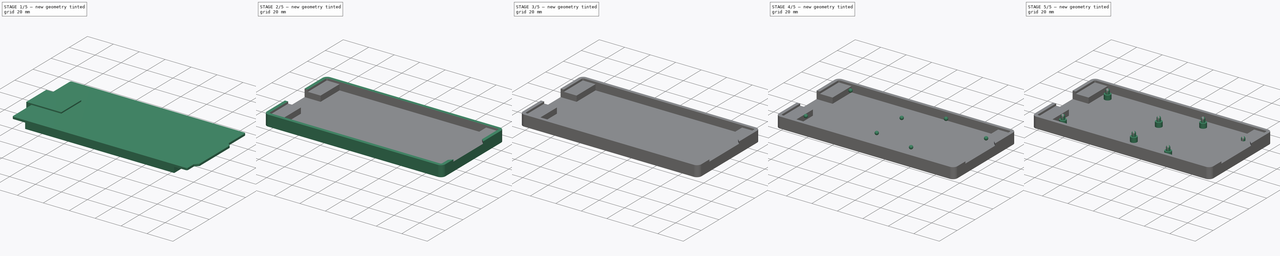
[diagram: build sequence overview — one tinted view per stage of 5, left to right]
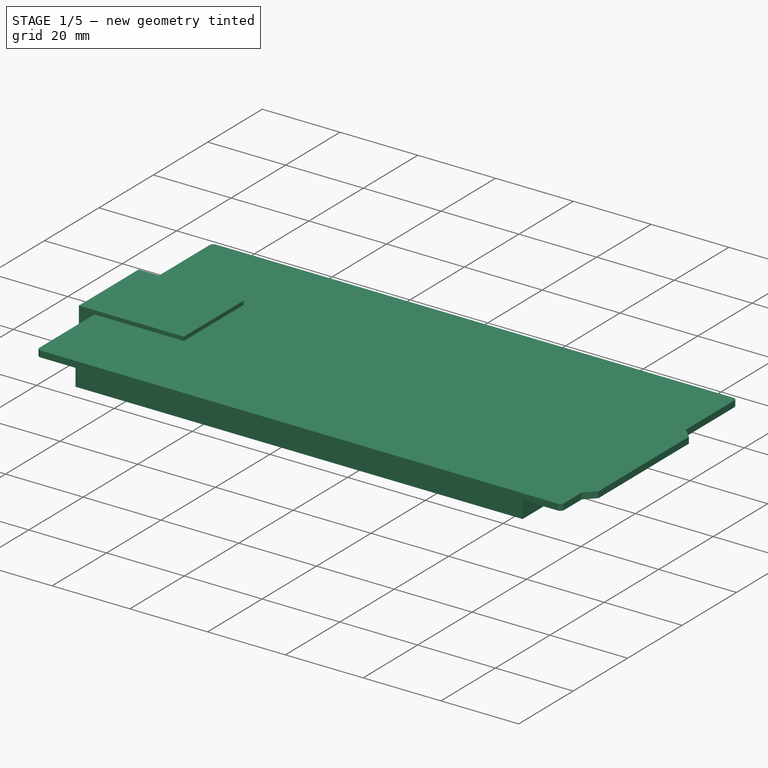
[diagram: stage 1 of 5 — iso view after this stage's code; geometry added in this stage tinted green]
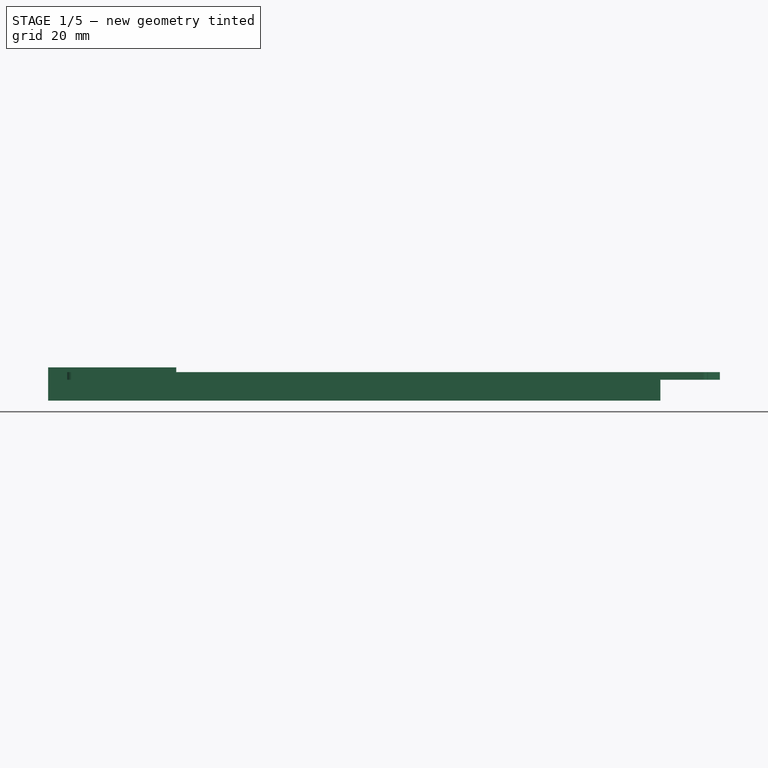
[diagram: stage 1 of 5 — front view after this stage's code; geometry added in this stage tinted green]
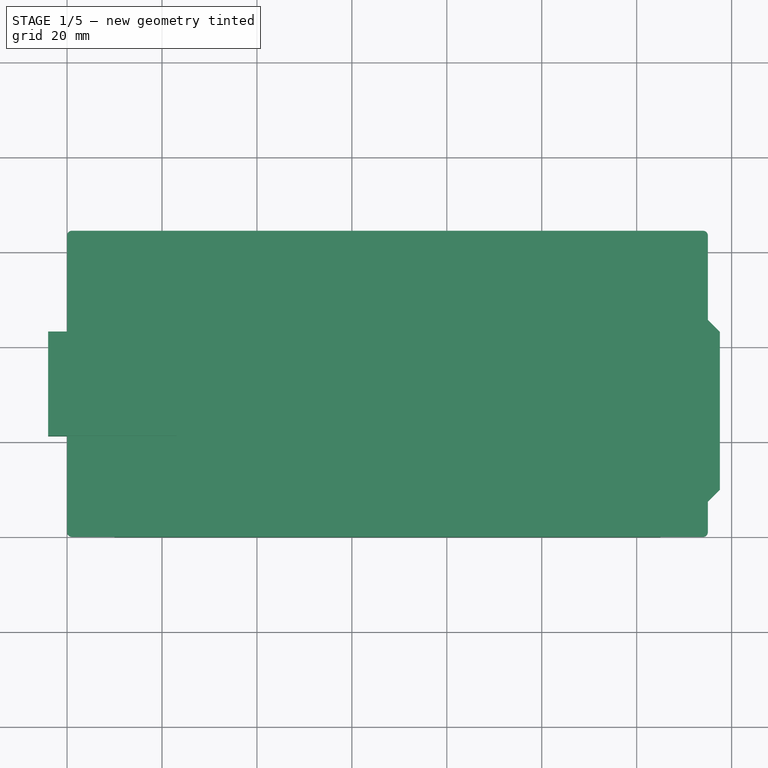
[diagram: stage 1 of 5 — top view after this stage's code; geometry added in this stage tinted green]
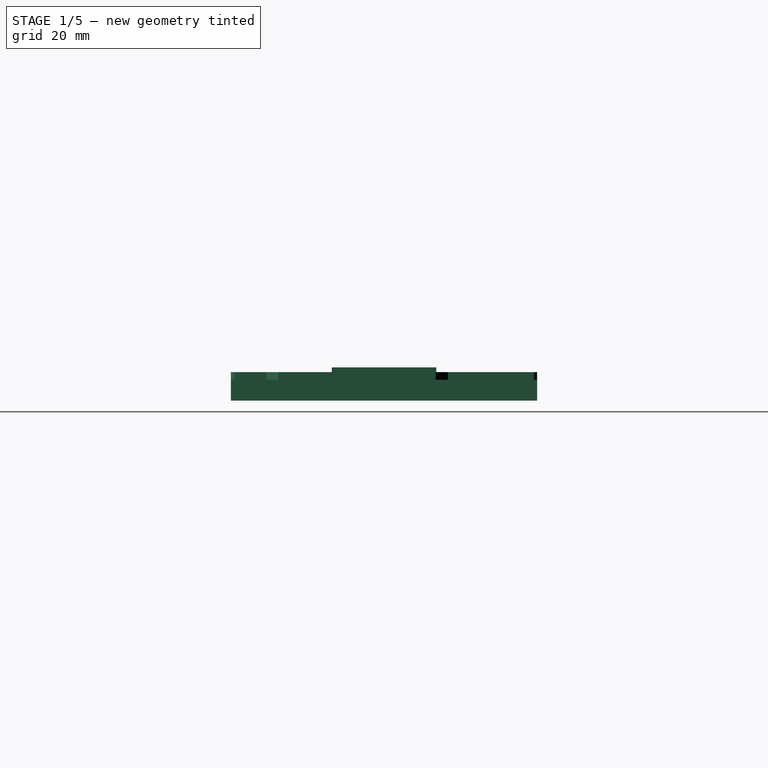
[diagram: stage 1 of 5 — right view after this stage's code; geometry added in this stage tinted green]
FCSTD DOCUMENT  (FreeCAD 0.16R)
Label: case
License: All rights reserved
LicenseURL: http://en.wikipedia.org/wiki/All_rights_reserved
objects: Part::Sphere×7, Sketcher::SketchObject×5, Part::Extrusion×5, Part::MultiFuse×4, Part::Box×1, Part::Cut×1
note: 23 computed .brp shape members not serialized (recipe doc carries the construction recipe); baked Part::Feature solids carry a one-line shape summary decoded from their .brp

FEATURE [Sketcher::SketchObject] Sketch  label="inner"
  sketch-geometry (12):
    g0: LineSegment StartX=0 StartY=1.02 StartZ=0 EndX=0 EndY=63.48 EndZ=0
    g1: LineSegment StartX=1.02 StartY=64.5 StartZ=0 EndX=133.97 EndY=64.5 EndZ=0
    g2: LineSegment StartX=134.99 StartY=63.48 StartZ=0 EndX=134.99 EndY=45.7 EndZ=0
    g3: LineSegment StartX=134.99 StartY=45.7 StartZ=0 EndX=137.53 EndY=43.16 EndZ=0
    g4: LineSegment StartX=137.53 StartY=43.16 StartZ=0 EndX=137.53 EndY=9.96 EndZ=0
    g5: LineSegment StartX=137.53 StartY=9.96 StartZ=0 EndX=134.99 EndY=7.42 EndZ=0
    g6: LineSegment StartX=134.99 StartY=7.42 StartZ=0 EndX=134.99 EndY=1.02 EndZ=0
    g7: LineSegment StartX=133.97 StartY=0 StartZ=0 EndX=1.02 EndY=0 EndZ=0
    g8: ArcOfCircle CenterX=1.02 CenterY=63.48 CenterZ=0 NormalX=0 NormalY=0 NormalZ=1 Radius=1.02 StartAngle=1.5708 EndAngle=3.14159
    g9: ArcOfCircle CenterX=133.97 CenterY=63.48 CenterZ=0 NormalX=0 NormalY=0 NormalZ=1 Radius=1.02 StartAngle=0 EndAngle=1.5708
    g10: ArcOfCircle CenterX=1.02 CenterY=1.02 CenterZ=0 NormalX=0 NormalY=0 NormalZ=1 Radius=1.02 StartAngle=3.14159 EndAngle=4.71239
    g11: ArcOfCircle CenterX=133.97 CenterY=1.02 CenterZ=0 NormalX=0 NormalY=0 NormalZ=1 Radius=1.02 StartAngle=4.71239 EndAngle=6.28319
  constraints (32):
    c: Coincident(g2,g3)
    c: Coincident(g3,g4)
    c: Coincident(g4,g5)
    c: Coincident(g5,g6)
    c: Tangent(g1,g8) = 1.5708
    c: Tangent(g0,g8) = 1.5708
    c: Tangent(g1,g9) = 1.5708
    c: Tangent(g2,g9) = 1.5708
    c: Tangent(g0,g10) = 1.5708
    c: Tangent(g7,g10) = 1.5708
    c: Tangent(g7,g11) = 1.5708
    c: Tangent(g6,g11) = 1.5708
    c: Radius(g8) = 1.02
    c: Radius(g10) = 1.02
    c: Radius(g11) = 1.02
    c: Radius(g9) = 1.02
    c: Vertical(g2)
    c: Vertical(g6)
    c: Vertical(g4)
    c: Horizontal(g1)
    c: Horizontal(g7)
    c: Vertical(g0)
    c: DistanceX(g0,g6) = 134.99
    c: DistanceX(g5,g4) = 2.54
    c: DistanceX(g0,g2) = 134.99
    c: Angle(g3,g2) = 2.35619
    c: Angle(g6,g5) = 2.35619
    c: DistanceY(g4,g4) = 33.2
    c: DistanceY(g7,g1) = 64.5
    c: DistanceX(g-1,g7) = 1.02
    c: DistanceY(g-1,g0) = 1.02
    c: DistanceY(g7,g5) = 7.42
FEATURE [Sketcher::SketchObject] Sketch001  label="outer"
  sketch-geometry (8):
    g0: LineSegment StartX=1.02 StartY=66.94 StartZ=0 EndX=133.97 EndY=66.94 EndZ=0
    g1: LineSegment StartX=137.53 StartY=63.38 StartZ=0 EndX=137.53 EndY=1.02 EndZ=0
    g2: LineSegment StartX=133.97 StartY=-2.54 StartZ=0 EndX=1.02 EndY=-2.54 EndZ=0
    g3: LineSegment StartX=-2.54 StartY=1.02 StartZ=0 EndX=-2.54 EndY=63.38 EndZ=0
    g4: ArcOfCircle CenterX=1.02 CenterY=63.38 CenterZ=0 NormalX=0 NormalY=0 NormalZ=1 Radius=3.56 StartAngle=1.5708 EndAngle=3.14159
    g5: ArcOfCircle CenterX=133.97 CenterY=63.38 CenterZ=0 NormalX=0 NormalY=0 NormalZ=1 Radius=3.56 StartAngle=0 EndAngle=1.5708
    g6: ArcOfCircle CenterX=133.97 CenterY=1.02 CenterZ=0 NormalX=0 NormalY=0 NormalZ=1 Radius=3.56 StartAngle=4.71239 EndAngle=6.28319
    g7: ArcOfCircle CenterX=1.02 CenterY=1.02 CenterZ=0 NormalX=0 NormalY=0 NormalZ=1 Radius=3.56 StartAngle=3.14159 EndAngle=4.71239
  constraints (20):
    c: Horizontal(g0)
    c: Horizontal(g2)
    c: Vertical(g1)
    c: Vertical(g3)
    c: Tangent(g0,g4) = 1.5708
    c: Tangent(g3,g4) = 1.5708
    c: Tangent(g0,g5) = 1.5708
    c: Tangent(g1,g5) = 1.5708
    c: Tangent(g1,g6) = 1.5708
    c: Tangent(g2,g6) = 1.5708
    c: Tangent(g3,g7) = 1.5708
    c: Tangent(g2,g7) = 1.5708
    c: Radius(g7) = 3.56
    c: Radius(g6) = 3.56
    c: Radius(g5) = 3.56
    c: Radius(g4) = 3.56
    c: DistanceX(g3,g1) = 140.07
    c: DistanceY(g2,g0) = 69.48
    c: DistanceY(g2,g-1) = 2.54
    c: DistanceX(g3,g-1) = 2.54
FEATURE [Sketcher::SketchObject] Sketch002  label="hole_pivot"
  sketch-geometry (7):
    g0: Circle CenterX=15.24 CenterY=55.88 CenterZ=0 NormalX=0 NormalY=0 NormalZ=1 Radius=1.4
    g1: Circle CenterX=13.97 CenterY=7.62 CenterZ=0 NormalX=0 NormalY=0 NormalZ=1 Radius=1.4
    g2: Circle CenterX=66.04 CenterY=40.64 CenterZ=0 NormalX=0 NormalY=0 NormalZ=1 Radius=1.4
    g3: Circle CenterX=66.04 CenterY=12.7 CenterZ=0 NormalX=0 NormalY=0 NormalZ=1 Radius=1.4
    g4: Circle CenterX=90.17 CenterY=55.88 CenterZ=0 NormalX=0 NormalY=0 NormalZ=1 Radius=1.4
    g5: Circle CenterX=96.52 CenterY=7.62 CenterZ=0 NormalX=0 NormalY=0 NormalZ=1 Radius=1.4
    g6: Circle CenterX=128.27 CenterY=46.35 CenterZ=0 NormalX=0 NormalY=0 NormalZ=1 Radius=1.4
  constraints (21):
    c: Radius(g0) = 1.4
    c: Radius(g1) = 1.4
    c: Radius(g2) = 1.4
    c: Radius(g3) = 1.4
    c: Radius(g4) = 1.4
    c: Radius(g5) = 1.4
    c: Radius(g6) = 1.4
    c: DistanceX(g-1,g1) = 13.97
    c: DistanceY(g-1,g1) = 7.62
    c: DistanceX(g-1,g0) = 15.24
    c: DistanceY(g-1,g0) = 55.88
    c: DistanceX(g-1,g3) = 66.04
    c: DistanceY(g-1,g3) = 12.7
    c: DistanceX(g-1,g2) = 66.04
    c: DistanceY(g-1,g2) = 40.64
    c: DistanceX(g-1,g4) = 90.17
    c: DistanceY(g-1,g4) = 55.88
    c: DistanceX(g-1,g6) = 128.27
    c: DistanceY(g-1,g6) = 46.35
    c: DistanceY(g-1,g5) = 7.62
    c: DistanceX(g-1,g5) = 96.52
FEATURE [Sketcher::SketchObject] Sketch003  label="hole_base"
  sketch-geometry (7):
    g0: Circle CenterX=15.24 CenterY=55.88 CenterZ=0 NormalX=0 NormalY=0 NormalZ=1 Radius=2.5
    g1: Circle CenterX=13.97 CenterY=7.62 CenterZ=0 NormalX=0 NormalY=0 NormalZ=1 Radius=2.5
    g2: Circle CenterX=66.04 CenterY=40.64 CenterZ=0 NormalX=0 NormalY=0 NormalZ=1 Radius=2.5
    g3: Circle CenterX=66.04 CenterY=12.7 CenterZ=0 NormalX=0 NormalY=0 NormalZ=1 Radius=2.5
    g4: Circle CenterX=90.17 CenterY=55.88 CenterZ=0 NormalX=0 NormalY=0 NormalZ=1 Radius=2.5
    g5: Circle CenterX=96.52 CenterY=7.62 CenterZ=0 NormalX=0 NormalY=0 NormalZ=1 Radius=2.5
    g6: Circle CenterX=128.27 CenterY=46.35 CenterZ=0 NormalX=0 NormalY=0 NormalZ=1 Radius=2.5
  constraints (21):
    c: Radius(g0) = 2.5
    c: Radius(g1) = 2.5
    c: Radius(g2) = 2.5
    c: Radius(g3) = 2.5
    c: Radius(g4) = 2.5
    c: Radius(g5) = 2.5
    c: Radius(g6) = 2.5
    c: DistanceX(g-1,g1) = 13.97
    c: DistanceY(g-1,g1) = 7.62
    c: DistanceX(g-1,g0) = 15.24
    c: DistanceY(g-1,g0) = 55.88
    c: DistanceX(g-1,g3) = 66.04
    c: DistanceY(g-1,g3) = 12.7
    c: DistanceX(g-1,g2) = 66.04
    c: DistanceY(g-1,g2) = 40.64
    c: DistanceX(g-1,g4) = 90.17
    c: DistanceY(g-1,g4) = 55.88
    c: DistanceX(g-1,g6) = 128.27
    c: DistanceY(g-1,g6) = 46.35
    c: DistanceY(g-1,g5) = 7.62
    c: DistanceX(g-1,g5) = 96.52
FEATURE [Sketcher::SketchObject] Sketch004  label="base_gap"
  sketch-geometry (4):
    g0: LineSegment StartX=10 StartY=64.5 StartZ=0 EndX=124.99 EndY=64.5 EndZ=0
    g1: LineSegment StartX=124.99 StartY=64.5 StartZ=0 EndX=124.99 EndY=0 EndZ=0
    g2: LineSegment StartX=124.99 StartY=0 StartZ=0 EndX=10 EndY=0 EndZ=0
    g3: LineSegment StartX=10 StartY=0 StartZ=0 EndX=10 EndY=64.5 EndZ=0
  constraints (12):
    c: Coincident(g0,g1)
    c: Coincident(g1,g2)
    c: Coincident(g2,g3)
    c: Coincident(g3,g0)
    c: Horizontal(g0)
    c: Horizontal(g2)
    c: Vertical(g1)
    c: Vertical(g3)
    c: DistanceY(g2,g0) = 64.5
    c: DistanceX(g0,g0) = 114.99
    c: DistanceX(g-1,g2) = 10
    c: DistanceY(g-1,g2) = 0
FEATURE [Part::Box] Box  label="battery_gap"
  Height = 7
  Length = 27
  Placement = pos=(-4,21.25,2.54) rot=(0,0,1;0rad)
  Width = 22
FEATURE [Part::Extrusion] Extrude006  label="gap_solid"
  Base = -> Sketch004
  Dir = (0,0,6)
  Placement = pos=(0,0,2.54) rot=(0,0,1;0rad)
  Solid = true
FEATURE [Part::Extrusion] Extrude007  label="circuit_solid"
  Base = -> Sketch
  Dir = (0,0,1.6)
  Placement = pos=(0,0,6.94) rot=(0,0,1;0rad)
  Solid = true
FEATURE [Part::MultiFuse] Fusion  label="gaps_solid"
  Shapes = -> [Box,Extrude007,Extrude006]
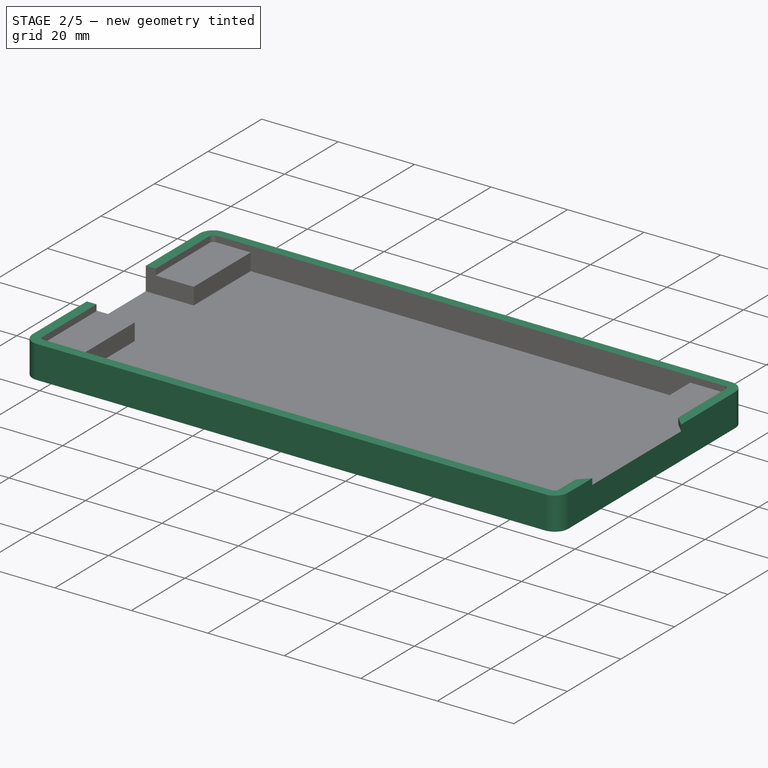
[diagram: stage 2 of 5 — iso view after this stage's code; geometry added in this stage tinted green]
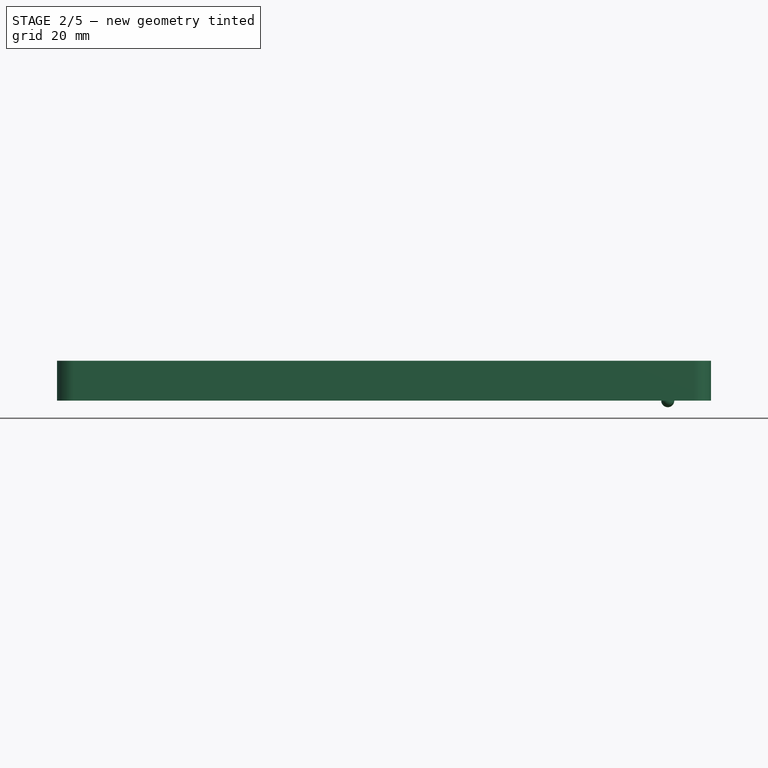
[diagram: stage 2 of 5 — front view after this stage's code; geometry added in this stage tinted green]
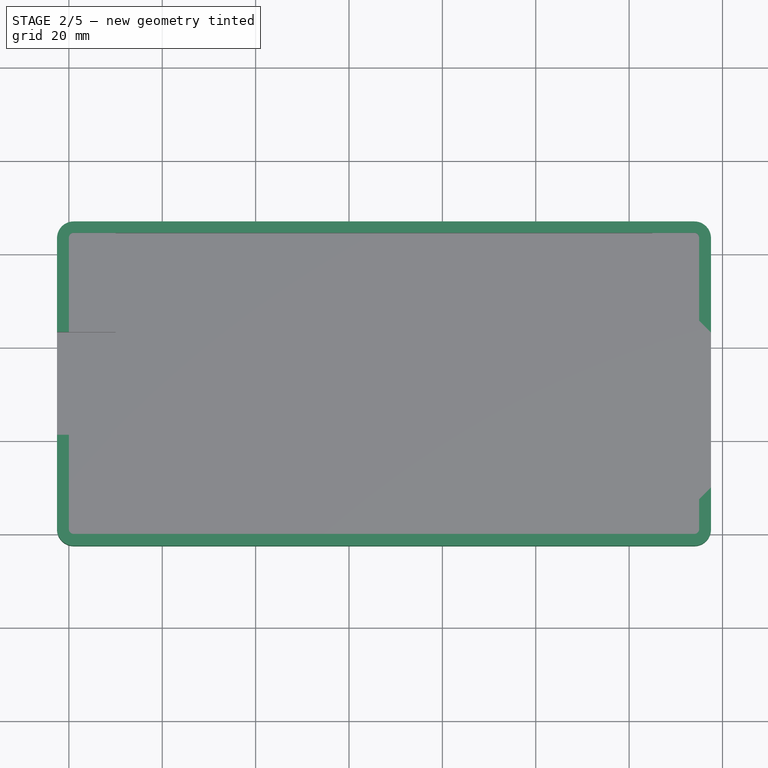
[diagram: stage 2 of 5 — top view after this stage's code; geometry added in this stage tinted green]
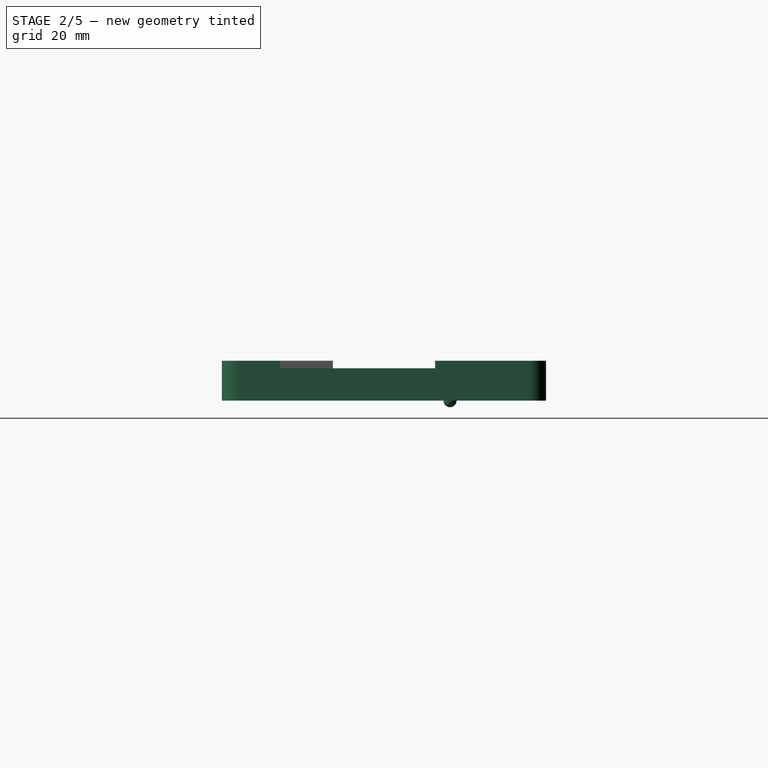
[diagram: stage 2 of 5 — right view after this stage's code; geometry added in this stage tinted green]
FEATURE [Part::Sphere] Sphere006
  Angle1 = -90
  Angle2 = 90
  Angle3 = 360
  Placement = pos=(128.27,46.35,0) rot=(0,0,1;0rad)
  Radius = 1.4
FEATURE [Part::Extrusion] Extrude  label="outer_solid"
  Base = -> Sketch001
  Dir = (0,0,8.54)
  Solid = true
FEATURE [Part::Cut] Cut  label="shell"
  Base = -> Extrude
  Tool = -> Fusion
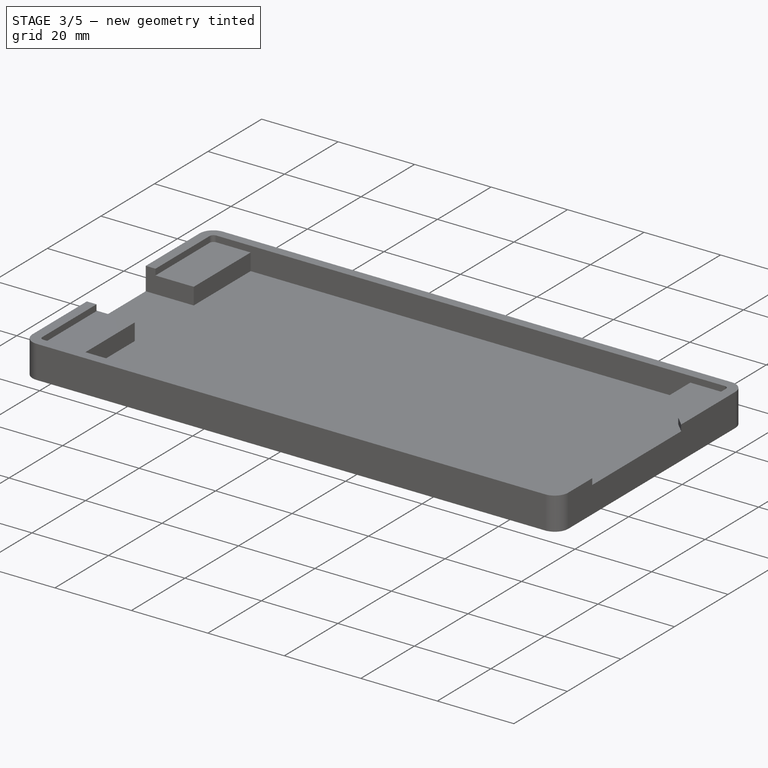
[diagram: stage 3 of 5 — iso view after this stage's code; geometry added in this stage tinted green]
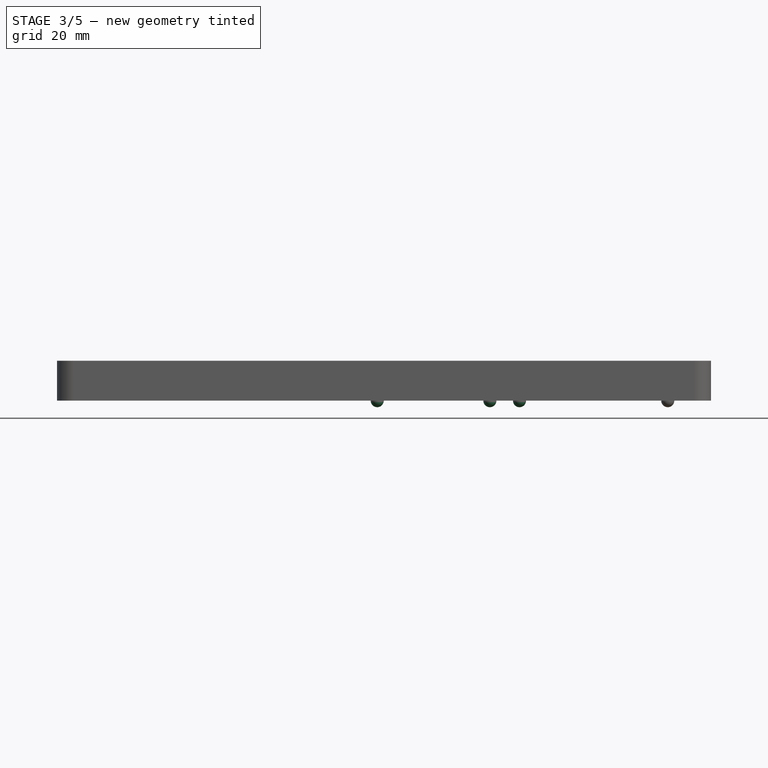
[diagram: stage 3 of 5 — front view after this stage's code; geometry added in this stage tinted green]
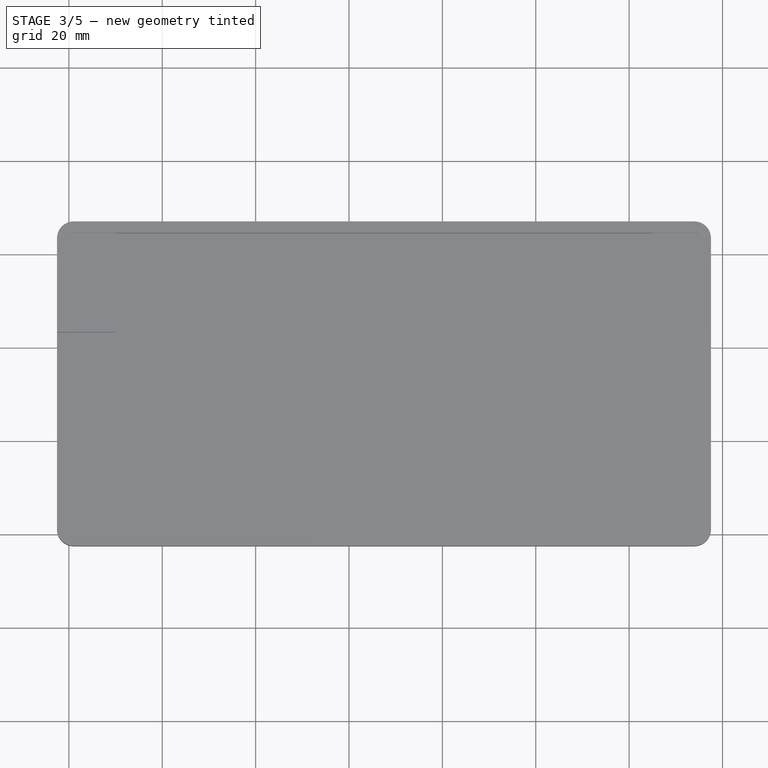
[diagram: stage 3 of 5 — top view after this stage's code; geometry added in this stage tinted green]
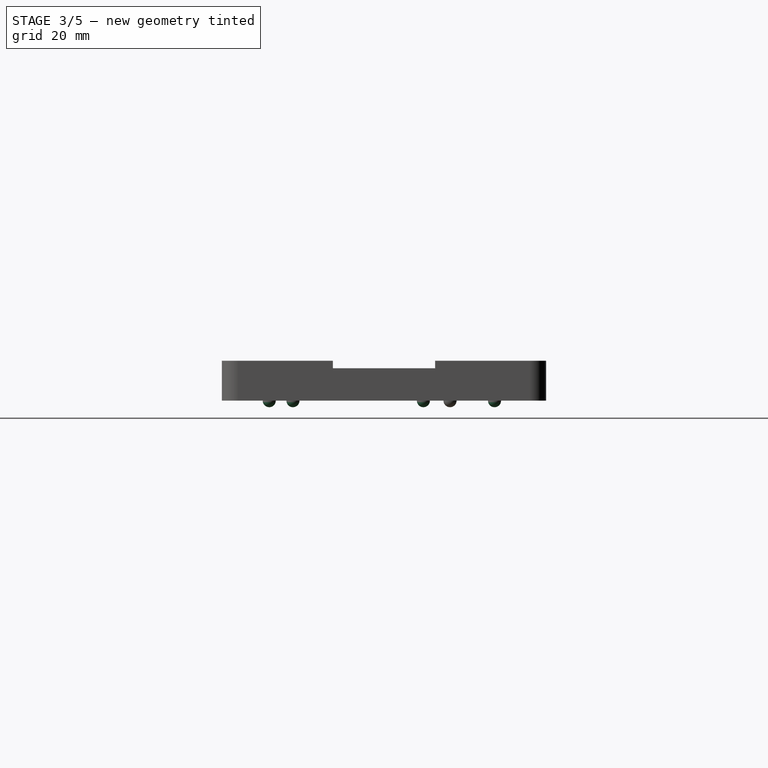
[diagram: stage 3 of 5 — right view after this stage's code; geometry added in this stage tinted green]
FEATURE [Part::Sphere] Sphere002
  Angle1 = -90
  Angle2 = 90
  Angle3 = 360
  Placement = pos=(66.04,12.7,0) rot=(0,0,1;0rad)
  Radius = 1.4
FEATURE [Part::Sphere] Sphere003
  Angle1 = -90
  Angle2 = 90
  Angle3 = 360
  Placement = pos=(66.04,40.64,0) rot=(0,0,1;0rad)
  Radius = 1.4
FEATURE [Part::Sphere] Sphere004
  Angle1 = -90
  Angle2 = 90
  Angle3 = 360
  Placement = pos=(96.52,7.62,0) rot=(0,0,1;0rad)
  Radius = 1.4
FEATURE [Part::Sphere] Sphere005
  Angle1 = -90
  Angle2 = 90
  Angle3 = 360
  Placement = pos=(90.17,55.88,0) rot=(0,0,1;0rad)
  Radius = 1.4
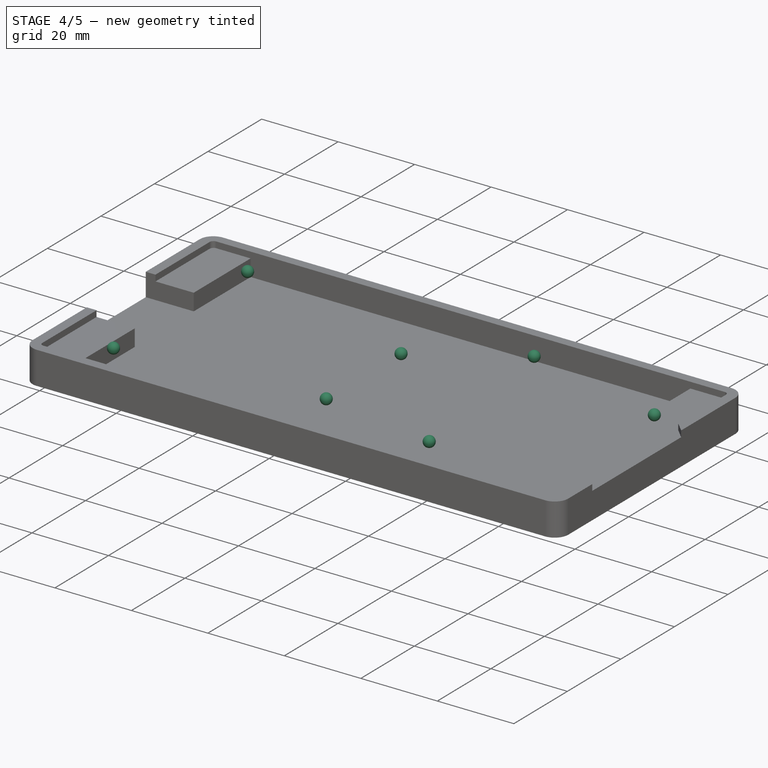
[diagram: stage 4 of 5 — iso view after this stage's code; geometry added in this stage tinted green]
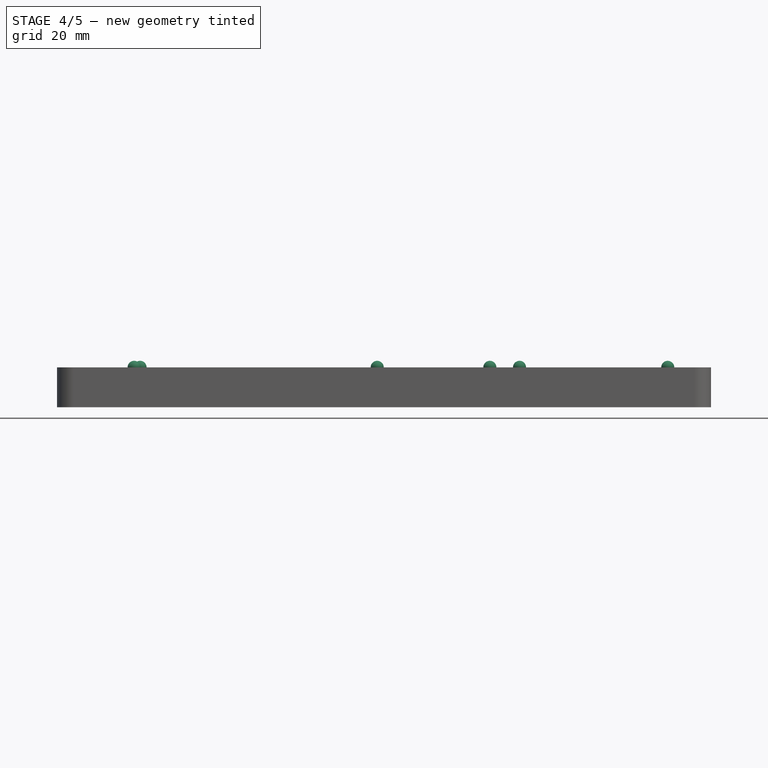
[diagram: stage 4 of 5 — front view after this stage's code; geometry added in this stage tinted green]
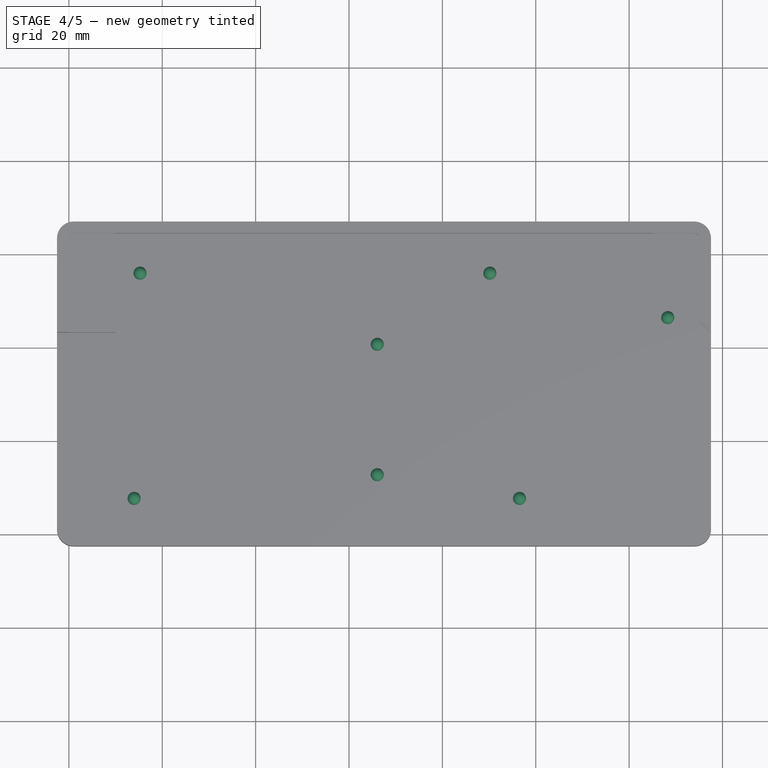
[diagram: stage 4 of 5 — top view after this stage's code; geometry added in this stage tinted green]
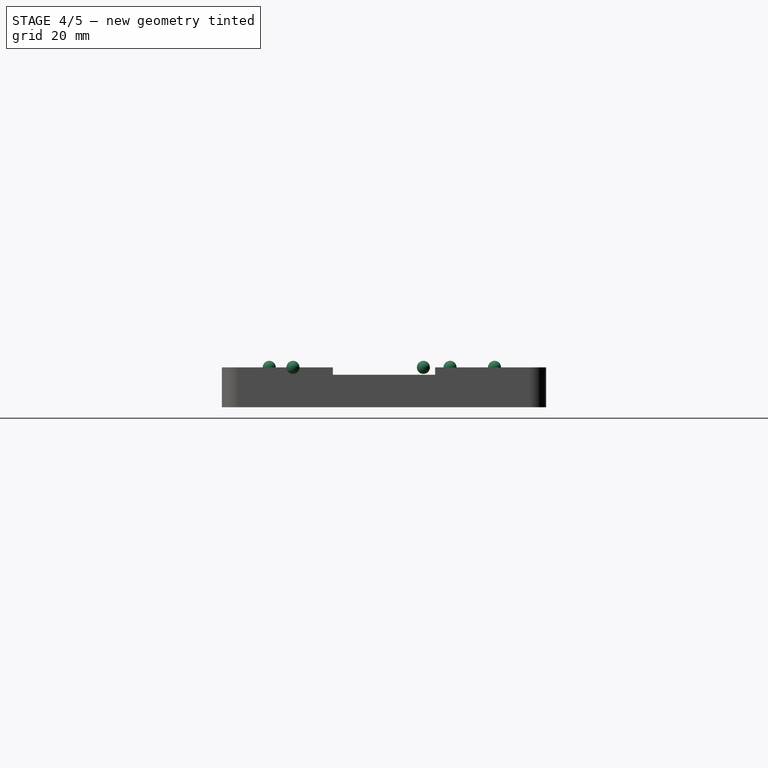
[diagram: stage 4 of 5 — right view after this stage's code; geometry added in this stage tinted green]
FEATURE [Part::Sphere] Sphere  label="Sphere000"
  Angle1 = -90
  Angle2 = 90
  Angle3 = 360
  Placement = pos=(13.97,7.62,0) rot=(0,0,1;0rad)
  Radius = 1.4
FEATURE [Part::Sphere] Sphere001
  Angle1 = -90
  Angle2 = 90
  Angle3 = 360
  Placement = pos=(15.24,55.88,0) rot=(0,0,1;0rad)
  Radius = 1.4
FEATURE [Part::MultiFuse] Fusion001  label="pivot_top_solids"
  Placement = pos=(0,0,8.54) rot=(0,0,1;0rad)
  Shapes = -> [Sphere,Sphere004,Sphere005,Sphere002,Sphere001,Sphere006,Sphere003]
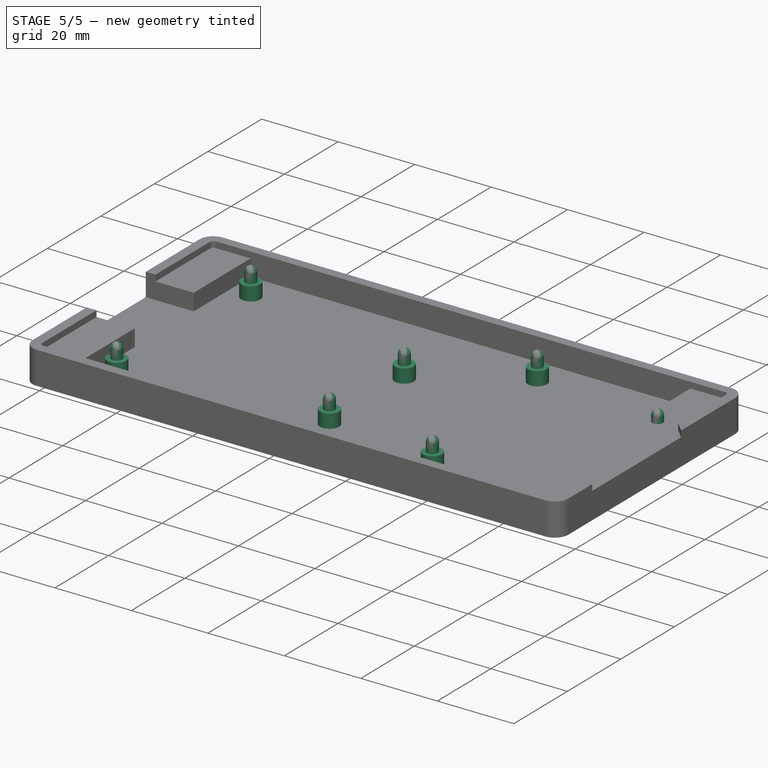
[diagram: stage 5 of 5 — iso view after this stage's code; geometry added in this stage tinted green]
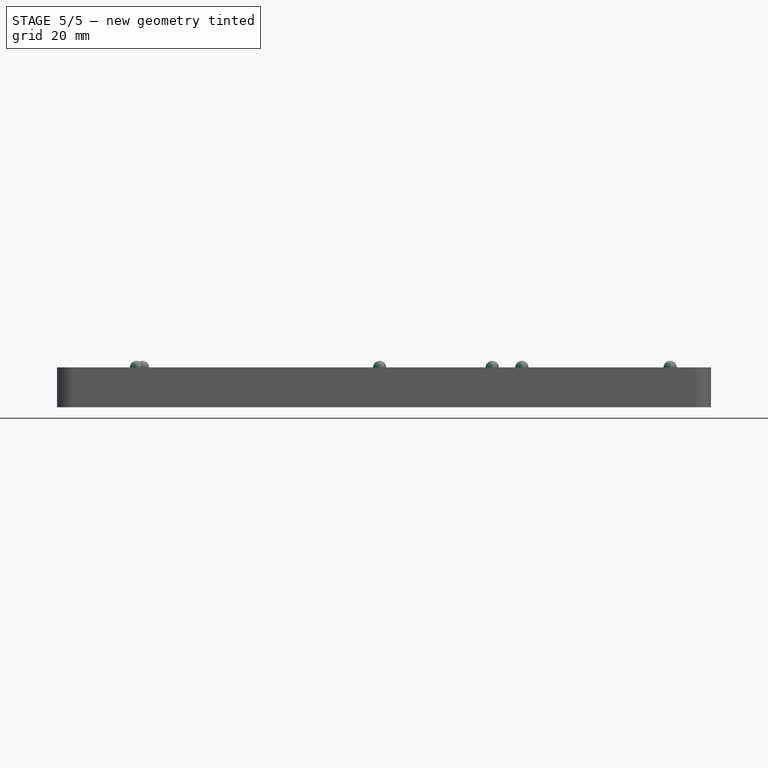
[diagram: stage 5 of 5 — front view after this stage's code; geometry added in this stage tinted green]
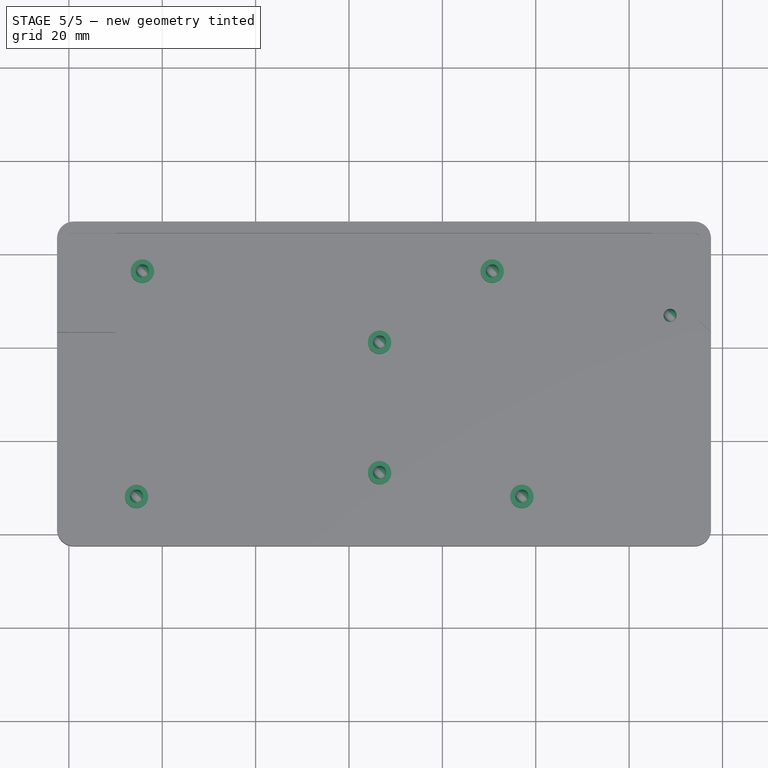
[diagram: stage 5 of 5 — top view after this stage's code; geometry added in this stage tinted green]
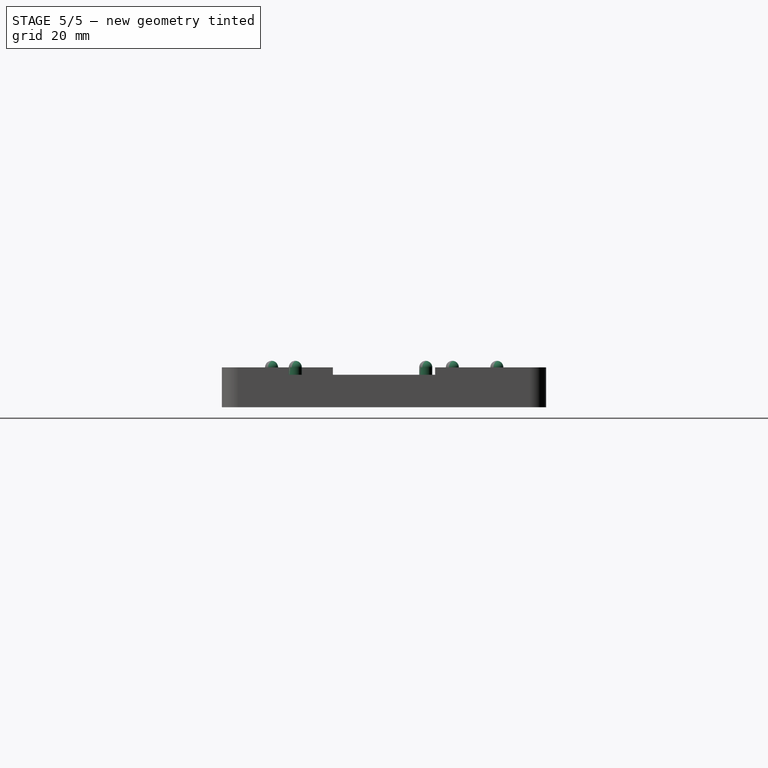
[diagram: stage 5 of 5 — right view after this stage's code; geometry added in this stage tinted green]
FEATURE [Part::Extrusion] Extrude003  label="pivot_base_solids"
  Base = -> Sketch003
  Dir = (0,0,3.6)
  Placement = pos=(0,0,2.54) rot=(0,0,1;0rad)
  Solid = true
FEATURE [Part::Extrusion] Extrude004  label="hole_pivot_solids"
  Base = -> Sketch002
  Dir = (0,0,6)
  Placement = pos=(0,0,2.54) rot=(0,0,1;0rad)
  Solid = true
FEATURE [Part::MultiFuse] Fusion002  label="pivots"
  Placement = pos=(0.5,0.5,0) rot=(0,0,1;0rad)
  Shapes = -> [Extrude004,Fusion001,Extrude003]
FEATURE [Part::MultiFuse] Fusion003  label="case"
  Shapes = -> [Fusion002,Cut]
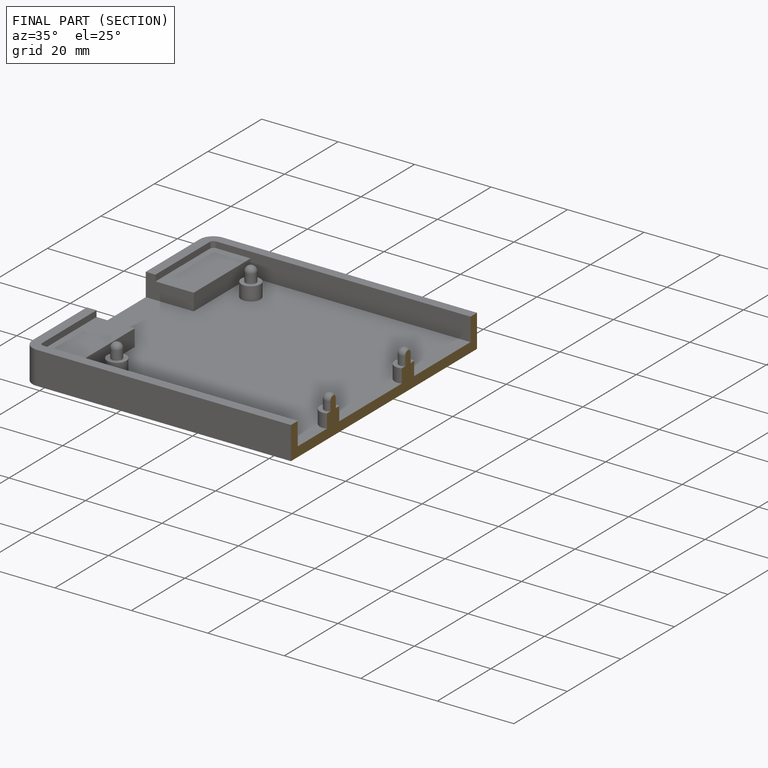
[diagram: finished part — half-section view (interior)]
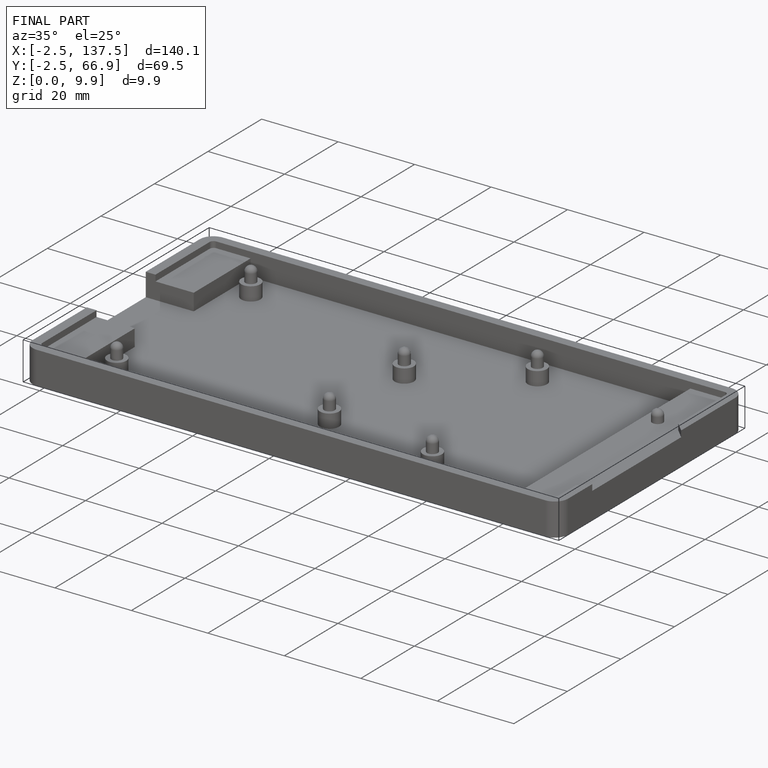
[diagram: finished part — iso view with bounding-box wireframe]
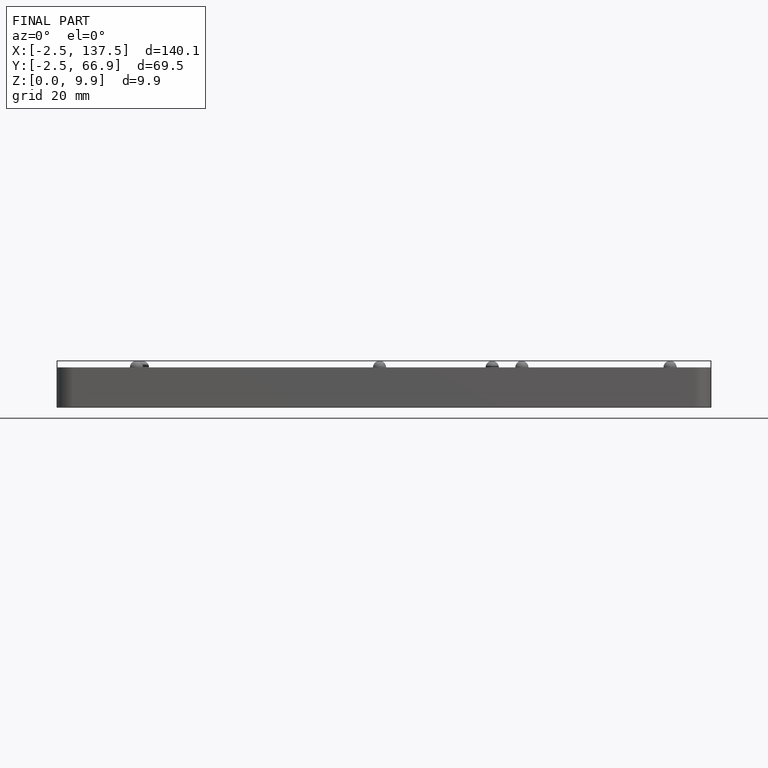
[diagram: finished part — front view with bounding-box wireframe]
